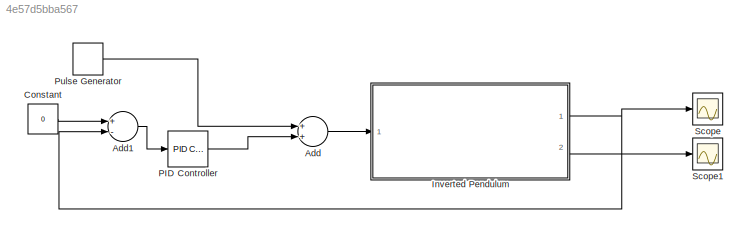
MODEL slx_4e57d5bba567
KIND model
CONFIG AbsTol = auto
CONFIG FixedStep = auto
CONFIG MaxStep = auto
CONFIG MinStep = auto
CONFIG RelTol = 1e-3
CONFIG SampleTimeConstraint = Unconstrained
CONFIG Solver = ode45
CONFIG SolverMode = Auto
CONFIG SolverName = ode45
CONFIG StartTime = 0.0
CONFIG StopTime = 5
BLOCK [Sum] Add
  InputSameDT = off
  OutDataTypeStr = Inherit: Inherit via internal rule
  Ports = [2, 1]
  SaturateOnIntegerOverflow = off
BLOCK [Sum] Add1
  InputSameDT = off
  Inputs = +-
  OutDataTypeStr = Inherit: Inherit via internal rule
  Ports = [2, 1]
  SaturateOnIntegerOverflow = off
BLOCK [Constant] Constant
  Value = 0
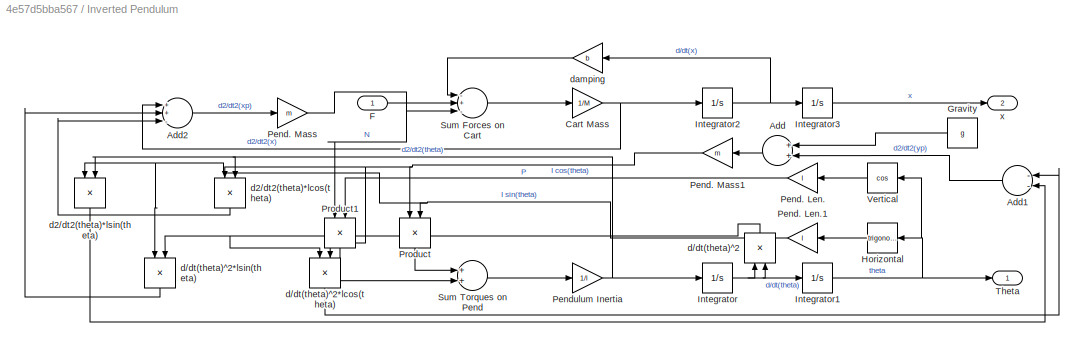
BLOCK [SubSystem] Inverted Pendulum
  Ports = [1, 2]
  RequestExecContextInheritance = off
BLOCK [Sum] Inverted Pendulum/Add
  InputSameDT = off
  OutDataTypeStr = Inherit: Inherit via internal rule
  Ports = [2, 1]
  SaturateOnIntegerOverflow = off
BLOCK [Sum] Inverted Pendulum/Add1
  InputSameDT = off
  Inputs = --
  OutDataTypeStr = Inherit: Inherit via internal rule
  Ports = [2, 1]
  SaturateOnIntegerOverflow = off
BLOCK [Sum] Inverted Pendulum/Add2
  InputSameDT = off
  Inputs = ++-
  OutDataTypeStr = Inherit: Inherit via internal rule
  Ports = [3, 1]
  SaturateOnIntegerOverflow = off
BLOCK [Gain] Inverted Pendulum/Cart Mass
  Gain = 1/M
  OutDataTypeStr = Inherit: Inherit via internal rule
  ParamDataTypeStr = Inherit: Inherit via internal rule
  SaturateOnIntegerOverflow = off
BLOCK [Inport] Inverted Pendulum/F
  IconDisplay = Port number
BLOCK [Constant] Inverted Pendulum/Gravity
  Value = g
BLOCK [Trigonometry] Inverted Pendulum/Horizontal
  Ports = [1, 1]
BLOCK [Integrator] Inverted Pendulum/Integrator
  Ports = [1, 1]
BLOCK [Integrator] Inverted Pendulum/Integrator1
  Ports = [1, 1]
BLOCK [Integrator] Inverted Pendulum/Integrator2
  Ports = [1, 1]
BLOCK [Integrator] Inverted Pendulum/Integrator3
  Ports = [1, 1]
BLOCK [Gain] Inverted Pendulum/Pend. Len.
  Gain = l
  OutDataTypeStr = Inherit: Inherit via internal rule
  ParamDataTypeStr = Inherit: Inherit via internal rule
  SaturateOnIntegerOverflow = off
BLOCK [Gain] Inverted Pendulum/Pend. Len.1
  Gain = l
  OutDataTypeStr = Inherit: Inherit via internal rule
  ParamDataTypeStr = Inherit: Inherit via internal rule
  SaturateOnIntegerOverflow = off
BLOCK [Gain] Inverted Pendulum/Pend. Mass
  Gain = m
  OutDataTypeStr = Inherit: Inherit via internal rule
  ParamDataTypeStr = Inherit: Inherit via internal rule
  SaturateOnIntegerOverflow = off
BLOCK [Gain] Inverted Pendulum/Pend. Mass1
  Gain = m
  OutDataTypeStr = Inherit: Inherit via internal rule
  ParamDataTypeStr = Inherit: Inherit via internal rule
  SaturateOnIntegerOverflow = off
BLOCK [Gain] Inverted Pendulum/Pendulum Inertia
  Gain = 1/l
  OutDataTypeStr = Inherit: Inherit via internal rule
  ParamDataTypeStr = Inherit: Inherit via internal rule
  SaturateOnIntegerOverflow = off
BLOCK [Product] Inverted Pendulum/Product
  InputSameDT = off
  OutDataTypeStr = Inherit: Inherit via internal rule
  Ports = [2, 1]
  RndMeth = Floor
  SaturateOnIntegerOverflow = off
BLOCK [Product] Inverted Pendulum/Product1
  InputSameDT = off
  OutDataTypeStr = Inherit: Inherit via internal rule
  Ports = [2, 1]
  RndMeth = Floor
  SaturateOnIntegerOverflow = off
BLOCK [Sum] Inverted Pendulum/Sum Forces on Cart
  InputSameDT = off
  Inputs = -+-
  OutDataTypeStr = Inherit: Inherit via internal rule
  Ports = [3, 1]
  SaturateOnIntegerOverflow = off
BLOCK [Sum] Inverted Pendulum/Sum Torques on Pend
  InputSameDT = off
  OutDataTypeStr = Inherit: Inherit via internal rule
  Ports = [2, 1]
  SaturateOnIntegerOverflow = off
BLOCK [Outport] Inverted Pendulum/Theta
  IconDisplay = Port number
BLOCK [Trigonometry] Inverted Pendulum/Vertical
  Operator = cos
  Ports = [1, 1]
BLOCK [Product] Inverted Pendulum/d//dt(theta)^2
  InputSameDT = off
  OutDataTypeStr = Inherit: Inherit via internal rule
  Ports = [2, 1]
  RndMeth = Floor
  SaturateOnIntegerOverflow = off
BLOCK [Product] Inverted Pendulum/d//dt(theta)^2*lcos(theta)
  InputSameDT = off
  OutDataTypeStr = Inherit: Inherit via internal rule
  Ports = [2, 1]
  RndMeth = Floor
  SaturateOnIntegerOverflow = off
BLOCK [Product] Inverted Pendulum/d//dt(theta)^2*lsin(theta)
  InputSameDT = off
  OutDataTypeStr = Inherit: Inherit via internal rule
  Ports = [2, 1]
  RndMeth = Floor
  SaturateOnIntegerOverflow = off
BLOCK [Product] Inverted Pendulum/d2//dt2(theta)*lcos(theta)
  InputSameDT = off
  OutDataTypeStr = Inherit: Inherit via internal rule
  Ports = [2, 1]
  RndMeth = Floor
  SaturateOnIntegerOverflow = off
BLOCK [Product] Inverted Pendulum/d2//dt2(theta)*lsin(theta)
  InputSameDT = off
  OutDataTypeStr = Inherit: Inherit via internal rule
  Ports = [2, 1]
  RndMeth = Floor
  SaturateOnIntegerOverflow = off
BLOCK [Gain] Inverted Pendulum/damping 
  Gain = b
  OutDataTypeStr = Inherit: Inherit via internal rule
  ParamDataTypeStr = Inherit: Inherit via internal rule
  SaturateOnIntegerOverflow = off
BLOCK [Outport] Inverted Pendulum/x
  IconDisplay = Port number
  Port = 2
BLOCK [Reference] PID Controller  REF=simulink/Continuous/PID Controller
  AntiWindupMode = none
  Controller = PID
  ControllerParametersSource = internal
  D = 20
  DGainOutDataTypeStr = Inherit: Inherit via internal rule
  DOutDataTypeStr = Inherit: Inherit via internal rule
  DOutMax = []
  DOutMin = []
  DParamDataTypeStr = Inherit: Inherit via internal rule
  DParamMax = []
  DParamMin = []
  DProdOutDataTypeStr = Inherit: Inherit via internal rule
  DifferentiatorICPrevScaledInput = 0
  DifferentiatorOutDataTypeStr = Inherit: Inherit via internal rule
  DifferentiatorOutMax = []
  DifferentiatorOutMin = []
  ExternalReset = none
  FilterContinuousStateAttributes = ''
  FilterMethod = Forward Euler
  FilterOutDataTypeStr = Inherit: Inherit via internal rule
  FilterOutMax = []
  FilterOutMin = []
  FilterRTWStateStorageClass = Auto
  FilterStateMustResolveToSignalObject = off
  Form = Parallel
  I = 10
  IGainOutDataTypeStr = Inherit: Inherit via internal rule
  IOutDataTypeStr = Inherit: Inherit via internal rule
  IOutMax = []
  IOutMin = []
  IParamDataTypeStr = Inherit: Inherit via internal rule
  IParamMax = []
  IParamMin = []
  IProdOutDataTypeStr = Inherit: Inherit via internal rule
  IgnoreLimit = off
  InitialConditionForFilter = 0
  InitialConditionForIntegrator = 0
  InitialConditionSource = internal
  IntegratorContinuousStateAttributes = ''
  IntegratorMethod = Forward Euler
  IntegratorOutDataTypeStr = Inherit: Inherit via internal rule
  IntegratorOutMax = []
  IntegratorOutMin = []
  IntegratorRTWStateStorageClass = Auto
  IntegratorStateMustResolveToSignalObject = off
  Kb = 1
  KbOutDataTypeStr = Inherit: Inherit via internal rule
  KbOutMax = []
  KbOutMin = []
  KbParamDataTypeStr = Inherit: Inherit via internal rule
  KbParamMax = []
  KbParamMin = []
  Kt = 1
  KtOutDataTypeStr = Inherit: Inherit via internal rule
  KtOutMax = []
  KtOutMin = []
  KtParamDataTypeStr = Inherit: Inherit via internal rule
  KtParamMax = []
  KtParamMin = []
  LimitOutput = off
  LinearizeAsGain = on
  LockScale = off
  LowerSaturationLimit = -inf
  N = 100
  NGainOutDataTypeStr = Inherit: Inherit via internal rule
  NOutDataTypeStr = Inherit: Inherit via internal rule
  NOutMax = []
  NOutMin = []
  NParamDataTypeStr = Inherit: Inherit via internal rule
  NParamMax = []
  NParamMin = []
  NProdOutDataTypeStr = Inherit: Inherit via internal rule
  P = 1000
  PGainOutDataTypeStr = Inherit: Inherit via internal rule
  POutDataTypeStr = Inherit: Inherit via internal rule
  POutMax = []
  POutMin = []
  PParamDataTypeStr = Inherit: Inherit via internal rule
  PParamMax = []
  PParamMin = []
  PProdOutDataTypeStr = Inherit: Inherit via internal rule
  Ports = [1, 1]
  RndMeth = Floor
  SampleTime = -1
  SaturateOnIntegerOverflow = off
  SaturationOutDataTypeStr = Inherit: Same as input
  SaturationOutMax = []
  SaturationOutMin = []
  SourceBlock = simulink/Continuous/PID Controller
  SourceType = PID 1dof
  SumAccumDataTypeStr = Inherit: Inherit via internal rule
  SumDAccumDataTypeStr = Inherit: Inherit via internal rule
  SumDOutDataTypeStr = Inherit: Inherit via internal rule
  SumDOutMax = []
  SumDOutMin = []
  SumI1AccumDataTypeStr = Inherit: Inherit via internal rule
  SumI1OutDataTypeStr = Inherit: Inherit via internal rule
  SumI1OutMax = []
  SumI1OutMin = []
  SumI2AccumDataTypeStr = Inherit: Inherit via internal rule
  SumI2OutDataTypeStr = Inherit: Inherit via internal rule
  SumI2OutMax = []
  SumI2OutMin = []
  SumI3AccumDataTypeStr = Inherit: Inherit via internal rule
  SumI3OutDataTypeStr = Inherit: Inherit via internal rule
  SumI3OutMax = []
  SumI3OutMin = []
  SumOutDataTypeStr = Inherit: Inherit via internal rule
  SumOutMax = []
  SumOutMin = []
  TimeDomain = Continuous-time
  TrackingMode = off
  UpperSaturationLimit = inf
  UseFilter = on
  ZeroCross = on
BLOCK [DiscretePulseGenerator] Pulse Generator
  Amplitude = 1000
  Period = 10
  Ports = [0, 1]
  PulseType = Time based
  PulseWidth = 0.01
BLOCK [Scope] Scope
  Floating = off
  NumInputPorts = 1
  Ports = [1]
BLOCK [Scope] Scope1
  Floating = off
  NumInputPorts = 1
  Ports = [1]
  SaveName = ScopeData1
LINE Add1:1 -> PID Controller:1
LINE Add:1 -> Inverted Pendulum:1
LINE Constant:1 -> Add1:1
LINE Inverted Pendulum/Add1:1 -> Inverted Pendulum/Add:2
LINE Inverted Pendulum/Add2:1 -> Inverted Pendulum/Pend. Mass:1
LINE Inverted Pendulum/Add:1 -> Inverted Pendulum/Pend. Mass1:1
NET Inverted Pendulum/Cart Mass:1 -> Inverted Pendulum/Add2:1, Inverted Pendulum/Integrator2:1
LINE Inverted Pendulum/F:1 -> Inverted Pendulum/Sum Forces on Cart:2
LINE Inverted Pendulum/Gravity:1 -> Inverted Pendulum/Add:1
LINE Inverted Pendulum/Horizontal:1 -> Inverted Pendulum/Pend. Len.1:1
NET Inverted Pendulum/Integrator1:1 -> Inverted Pendulum/Horizontal:1, Inverted Pendulum/Theta:1, Inverted Pendulum/Vertical:1
NET Inverted Pendulum/Integrator2:1 -> Inverted Pendulum/Integrator3:1, Inverted Pendulum/damping :1
LINE Inverted Pendulum/Integrator3:1 -> Inverted Pendulum/x:1
NET Inverted Pendulum/Integrator:1 -> Inverted Pendulum/Integrator1:1, Inverted Pendulum/d//dt(theta)^2:1, Inverted Pendulum/d//dt(theta)^2:2
NET Inverted Pendulum/Pend. Len.1:1 -> Inverted Pendulum/Product:2, Inverted Pendulum/d//dt(theta)^2*lsin(theta):1, Inverted Pendulum/d2//dt2(theta)*lsin(theta):1
LINE Inverted Pendulum/Pend. Len.:1 -> Inverted Pendulum/Product1:2
NET Inverted Pendulum/Pend. Mass1:1 -> Inverted Pendulum/Product:1, Inverted Pendulum/d//dt(theta)^2*lcos(theta):2, Inverted Pendulum/d2//dt2(theta)*lcos(theta):1
NET Inverted Pendulum/Pend. Mass:1 -> Inverted Pendulum/Product1:1, Inverted Pendulum/Sum Forces on Cart:3
NET Inverted Pendulum/Pendulum Inertia:1 -> Inverted Pendulum/Integrator:1, Inverted Pendulum/d2//dt2(theta)*lcos(theta):2, Inverted Pendulum/d2//dt2(theta)*lsin(theta):2
LINE Inverted Pendulum/Product1:1 -> Inverted Pendulum/Sum Torques on Pend:2
LINE Inverted Pendulum/Product:1 -> Inverted Pendulum/Sum Torques on Pend:1
LINE Inverted Pendulum/Sum Forces on Cart:1 -> Inverted Pendulum/Cart Mass:1
LINE Inverted Pendulum/Sum Torques on Pend:1 -> Inverted Pendulum/Pendulum Inertia:1
LINE Inverted Pendulum/Vertical:1 -> Inverted Pendulum/Pend. Len.:1
LINE Inverted Pendulum/d//dt(theta)^2*lcos(theta):1 -> Inverted Pendulum/Add1:1
LINE Inverted Pendulum/d//dt(theta)^2*lsin(theta):1 -> Inverted Pendulum/Add2:2
NET Inverted Pendulum/d//dt(theta)^2:1 -> Inverted Pendulum/d//dt(theta)^2*lcos(theta):1, Inverted Pendulum/d//dt(theta)^2*lsin(theta):2
LINE Inverted Pendulum/d2//dt2(theta)*lcos(theta):1 -> Inverted Pendulum/Add2:3
LINE Inverted Pendulum/d2//dt2(theta)*lsin(theta):1 -> Inverted Pendulum/Add1:2
LINE Inverted Pendulum/damping :1 -> Inverted Pendulum/Sum Forces on Cart:1
NET Inverted Pendulum:1 -> Add1:2, Scope:1
LINE Inverted Pendulum:2 -> Scope1:1
LINE PID Controller:1 -> Add:2
LINE Pulse Generator:1 -> Add:1
note: NET lines group one-source signal fan-out (src -> all destinations, sorted); 1:1 wires keep LINE
